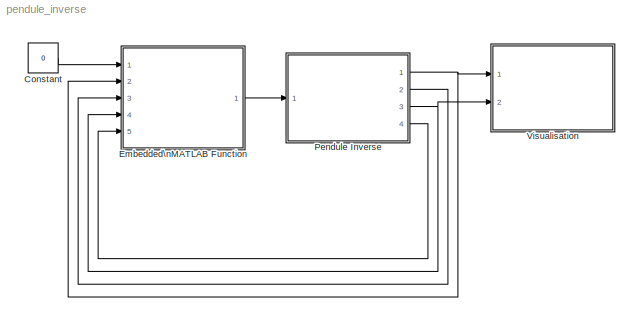
MODEL pendule_inverse
KIND model
BLOCK [Constant] Constant
  SID = 23
  Value = 0
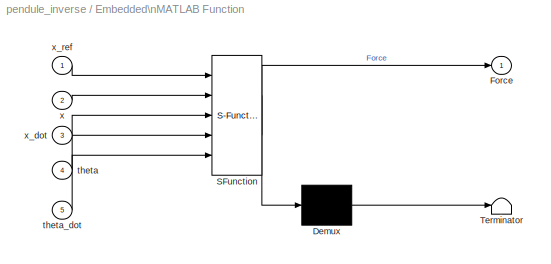
BLOCK [SubSystem] Embedded\nMATLAB Function
  ErrorFcn = Stateflow.Translate.translate
  FunctionWithSeparateData = off
  MaskHideContents = off
  MinAlgLoopOccurrences = off
  Opaque = off
  PermitHierarchicalResolution = ExplicitOnly
  Ports = [5, 1]
  PropExecContextOutsideSubsystem = off
  RTWSystemCode = Auto
  RequestExecContextInheritance = off
  SFBlockType = MATLAB Function
  SID = 1
  TreatAsAtomicUnit = on
BLOCK [Demux] Embedded\nMATLAB Function/ Demux 
  Outputs = 1
  Ports = [1, 1]
  SID = 1::18
BLOCK [S-Function] Embedded\nMATLAB Function/ SFunction 
  EnableBusSupport = on
  FunctionName = sf_sfun
  PortCounts = [5 2]
  Ports = [5, 2]
  SID = 1::17
  Tag = Stateflow S-Function pendule_inverse 2
BLOCK [Terminator] Embedded\nMATLAB Function/ Terminator 
  SID = 1::19
BLOCK [Outport] Embedded\nMATLAB Function/Force
  IconDisplay = Port number
  SID = 1::9
BLOCK [Inport] Embedded\nMATLAB Function/theta
  IconDisplay = Port number
  Port = 4
  SID = 1::4
BLOCK [Inport] Embedded\nMATLAB Function/theta_dot
  IconDisplay = Port number
  Port = 5
  SID = 1::5
BLOCK [Inport] Embedded\nMATLAB Function/x
  IconDisplay = Port number
  Port = 2
  SID = 1::2
BLOCK [Inport] Embedded\nMATLAB Function/x_dot
  IconDisplay = Port number
  Port = 3
  SID = 1::3
BLOCK [Inport] Embedded\nMATLAB Function/x_ref
  IconDisplay = Port number
  SID = 1::1
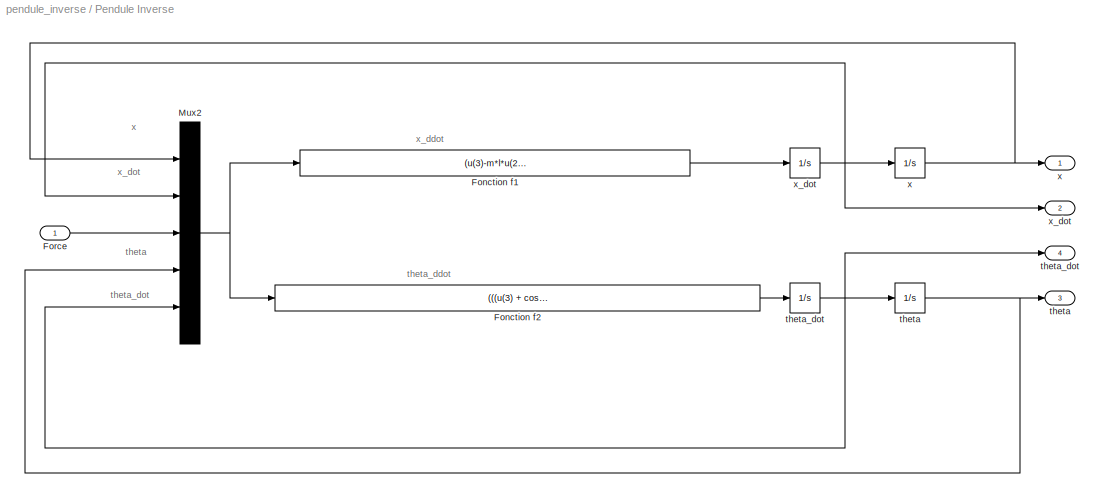
BLOCK [SubSystem] Pendule Inverse
  FunctionWithSeparateData = off
  MaskHideContents = off
  MinAlgLoopOccurrences = off
  Opaque = off
  Ports = [1, 4]
  PropExecContextOutsideSubsystem = off
  RTWSystemCode = Auto
  RequestExecContextInheritance = off
  SID = 2
BLOCK [Integrator] Pendule Inverse/ theta_dot
  Ports = [1, 1]
  SID = 4
BLOCK [Integrator] Pendule Inverse/ x_dot
  Ports = [1, 1]
  SID = 5
BLOCK [Fcn] Pendule Inverse/Fonction f1
  Expr = (u(3)-m*l*u(2)^2*sin(u(4))+m*g*sin(u(4))*cos(u(4)))/(M+m*(1-cos(u(5))^2))
  SID = 6
BLOCK [Fcn] Pendule Inverse/Fonction f2
  Expr = (((u(3) + cos(u(4))*sin(u(4))*m*g - m*l*(u(5)^2)*sin(u(4)))*cos(u(4))) / (M+m*(sin(u(4))^2)) + g*sin(u(4))) / l
  SID = 7
BLOCK [Inport] Pendule Inverse/Force
  IconDisplay = Port number
  SID = 3
BLOCK [Mux] Pendule Inverse/Mux2
  DisplayOption = bar
  Inputs = 5
  Ports = [5, 1]
  SID = 8
BLOCK [Integrator] Pendule Inverse/theta
  InitialCondition = pi/4
  LimitOutput = on
  LowerSaturationLimit = -pi/2
  Ports = [1, 1]
  SID = 9
  UpperSaturationLimit = pi/2
BLOCK [Outport] Pendule Inverse/theta 
  IconDisplay = Port number
  Port = 3
  SID = 13
BLOCK [Outport] Pendule Inverse/theta_dot 
  IconDisplay = Port number
  Port = 4
  SID = 14
BLOCK [Outport] Pendule Inverse/x
  IconDisplay = Port number
  SID = 11
BLOCK [Integrator] Pendule Inverse/x 
  LimitOutput = on
  LowerSaturationLimit = -9.5
  Ports = [1, 1]
  SID = 10
  UpperSaturationLimit = 9.5
BLOCK [Outport] Pendule Inverse/x_dot 
  IconDisplay = Port number
  Port = 2
  SID = 12
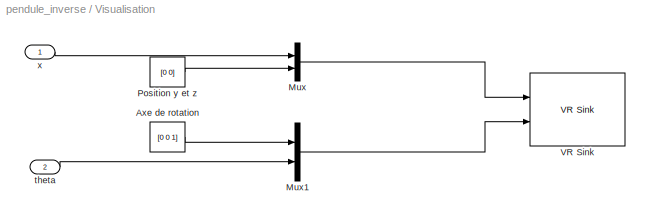
BLOCK [SubSystem] Visualisation
  FunctionWithSeparateData = off
  MaskHideContents = off
  MinAlgLoopOccurrences = off
  Opaque = off
  Ports = [2]
  PropExecContextOutsideSubsystem = off
  RTWSystemCode = Auto
  RequestExecContextInheritance = off
  SID = 15
BLOCK [Constant] Visualisation/Axe de rotation
  SID = 18
  Value = [0 0 1]
BLOCK [Mux] Visualisation/Mux
  DisplayOption = bar
  Inputs = 2
  Ports = [2, 1]
  SID = 19
BLOCK [Mux] Visualisation/Mux1
  DisplayOption = bar
  Inputs = 2
  Ports = [2, 1]
  SID = 20
BLOCK [Constant] Visualisation/Position y et z
  SID = 21
  Value = [0 0]
BLOCK [Reference] Visualisation/VR Sink  REF=vrlib/VR Sink
  AllowVariableSize = off
  AutoView = off
  FieldsWritten = Chariot.translation.3.1.1.double#Tige.rotation.4.1.1.double
  FigureProperties = {'Position', 'Name', 'Viewpoint', 'CameraBound', 'CameraDirection', 'CameraPosition', 'CameraUpVector', 'ZoomFactor', 'Antialiasing', 'Headlight', 'Lighting', 'NavPanel', 'StatusBar', 'ToolBar', 'Textures', 'Transparency', 'Triad', 'Wireframe', 'NavZones', 'NavMode', 'NavSpeed', 'CaptureFileFormat', 'CaptureFileName', 'Record2DCompressMethod', 'Record2DCompressQuality', 'Record2D', 'Record2DFileNa...<+602ch>
  InstantiateOnLoad = on
  Ports = [2]
  RemoteChange = off
  RemoteView = on
  SID = 22
  SampleTime = 0.1
  SourceBlock = vrlib/VR Sink
  SourceType = Virtual Reality Sink
  VideoDimensions = []
  ViewEnable = on
  WorldFileName = pendule_inverse.wrl
BLOCK [Inport] Visualisation/theta
  IconDisplay = Port number
  Port = 2
  SID = 17
BLOCK [Inport] Visualisation/x
  IconDisplay = Port number
  SID = 16
ANNOTATION Pendule Inverse: theta
ANNOTATION Pendule Inverse: theta_ddot
ANNOTATION Pendule Inverse: theta_dot
ANNOTATION Pendule Inverse: x
ANNOTATION Pendule Inverse: x_ddot
ANNOTATION Pendule Inverse: x_dot
LINE Constant:1 -> Embedded\nMATLAB Function:1
LINE Embedded\nMATLAB Function/ Demux :1 -> Embedded\nMATLAB Function/ Terminator :1
LINE Embedded\nMATLAB Function/ SFunction :1 -> Embedded\nMATLAB Function/ Demux :1
LINE Embedded\nMATLAB Function/ SFunction :2 -> Embedded\nMATLAB Function/Force:1
LINE Embedded\nMATLAB Function/theta:1 -> Embedded\nMATLAB Function/ SFunction :4
LINE Embedded\nMATLAB Function/theta_dot:1 -> Embedded\nMATLAB Function/ SFunction :5
LINE Embedded\nMATLAB Function/x:1 -> Embedded\nMATLAB Function/ SFunction :2
LINE Embedded\nMATLAB Function/x_dot:1 -> Embedded\nMATLAB Function/ SFunction :3
LINE Embedded\nMATLAB Function/x_ref:1 -> Embedded\nMATLAB Function/ SFunction :1
LINE Embedded\nMATLAB Function:1 -> Pendule Inverse:1
NET Pendule Inverse/ theta_dot:1 -> Pendule Inverse/Mux2:5, Pendule Inverse/theta:1, Pendule Inverse/theta_dot :1
NET Pendule Inverse/ x_dot:1 -> Pendule Inverse/Mux2:2, Pendule Inverse/x :1, Pendule Inverse/x_dot :1
LINE Pendule Inverse/Fonction f1:1 -> Pendule Inverse/ x_dot:1
LINE Pendule Inverse/Fonction f2:1 -> Pendule Inverse/ theta_dot:1
LINE Pendule Inverse/Force:1 -> Pendule Inverse/Mux2:3
NET Pendule Inverse/Mux2:1 -> Pendule Inverse/Fonction f1:1, Pendule Inverse/Fonction f2:1
NET Pendule Inverse/theta:1 -> Pendule Inverse/Mux2:4, Pendule Inverse/theta :1
NET Pendule Inverse/x :1 -> Pendule Inverse/Mux2:1, Pendule Inverse/x:1
NET Pendule Inverse:1 -> Embedded\nMATLAB Function:2, Visualisation:1
LINE Pendule Inverse:2 -> Embedded\nMATLAB Function:3
NET Pendule Inverse:3 -> Embedded\nMATLAB Function:4, Visualisation:2
LINE Pendule Inverse:4 -> Embedded\nMATLAB Function:5
LINE Visualisation/Axe de rotation:1 -> Visualisation/Mux1:1
LINE Visualisation/Mux1:1 -> Visualisation/VR Sink:2
LINE Visualisation/Mux:1 -> Visualisation/VR Sink:1
LINE Visualisation/Position y et z:1 -> Visualisation/Mux:2
LINE Visualisation/theta:1 -> Visualisation/Mux1:2
LINE Visualisation/x:1 -> Visualisation/Mux:1
note: NET lines group one-source signal fan-out (src -> all destinations, sorted); 1:1 wires keep LINE
CHART Embedded\nMATLAB Function states=1 transitions=1
  STATE_LABEL 'eML_blk_kernel()'
